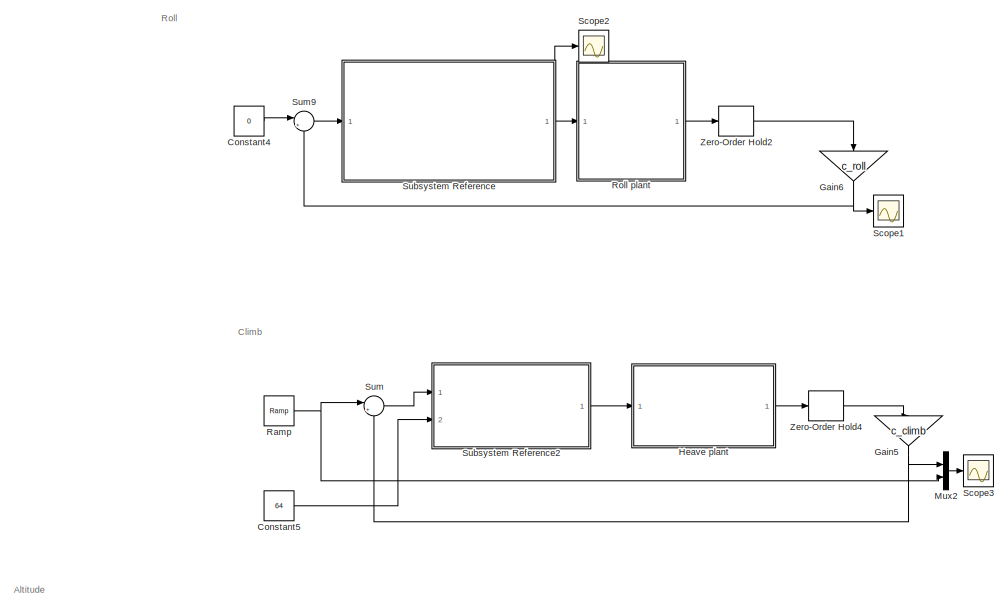
[diagram: root canvas - part 1/4, top center region]
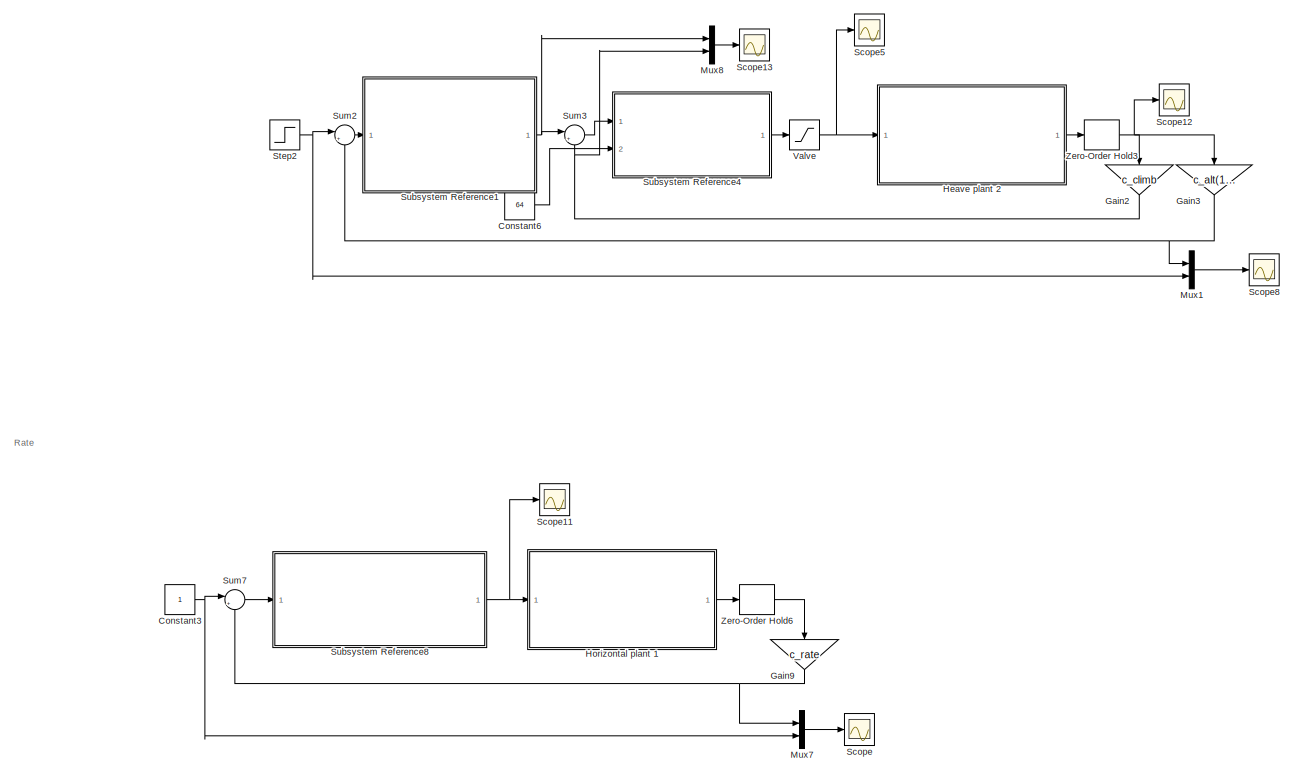
[diagram: root canvas - part 2/4, full width, middle band]
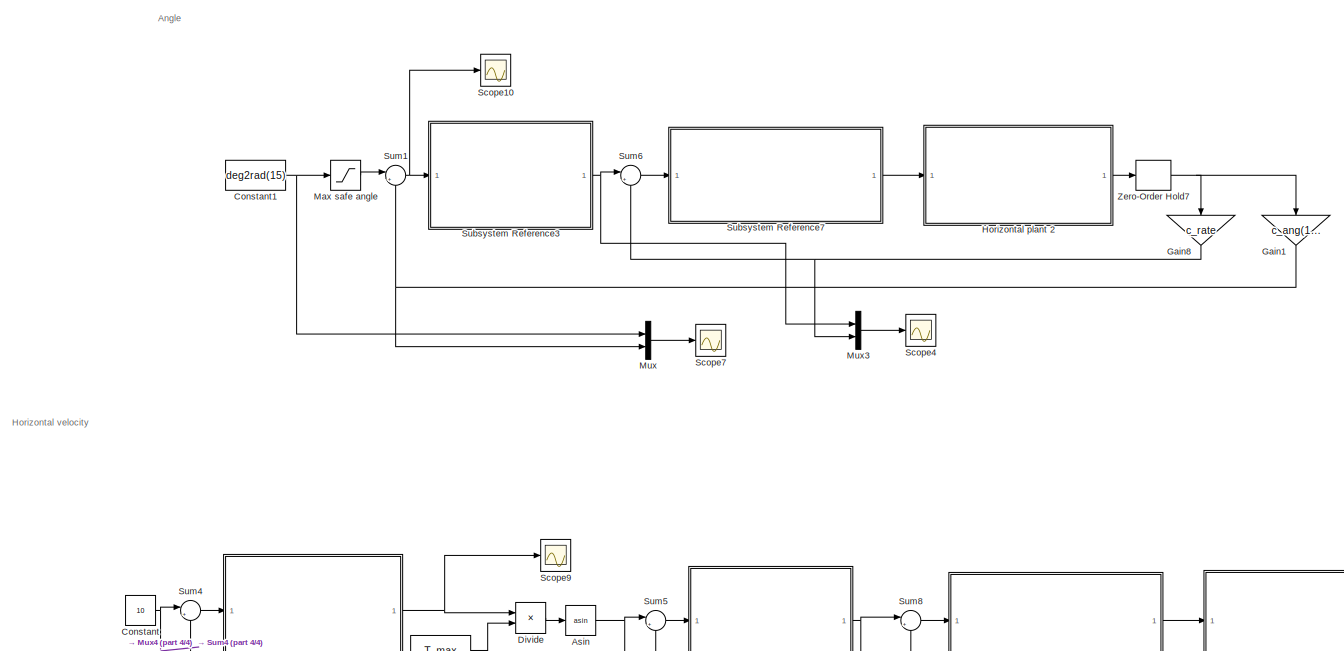
[diagram: root canvas - part 3/4, full width, bottom band]
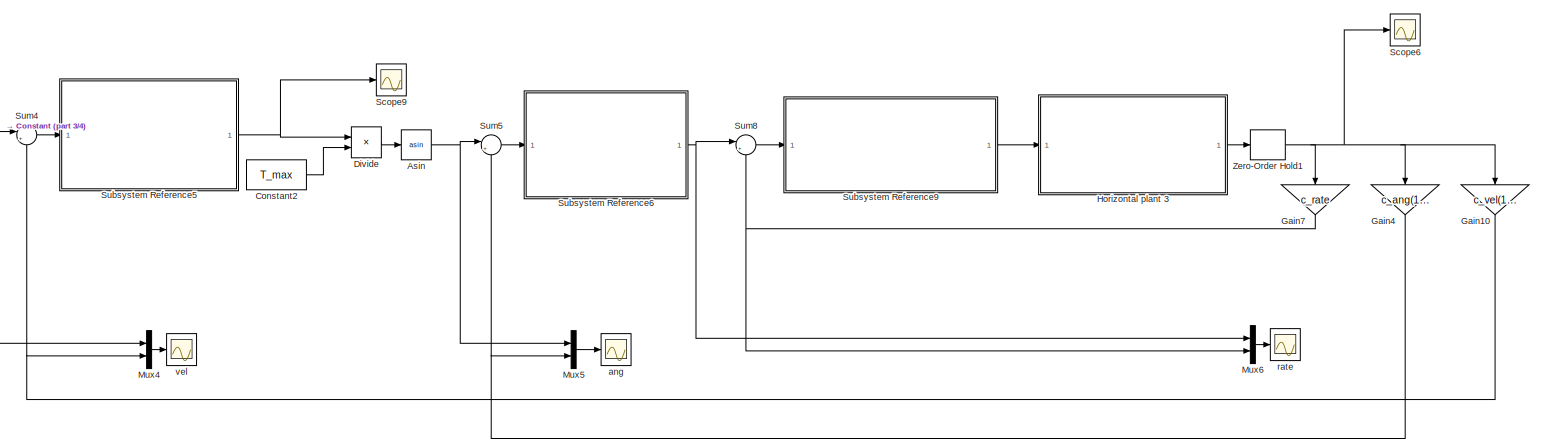
[diagram: root canvas - part 4/4, full width, bottom band]
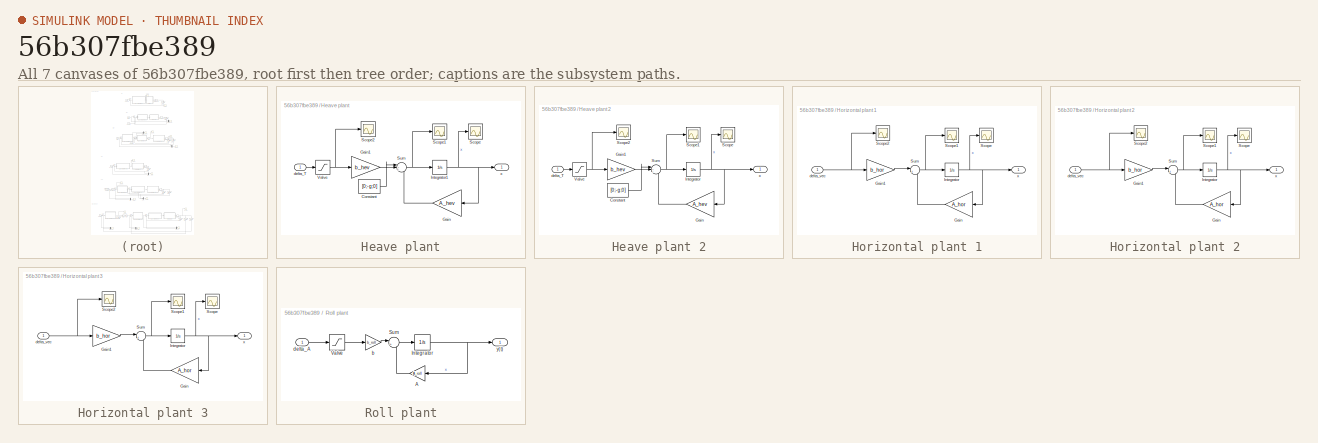
[diagram: thumbnail index - all 7 canvases of the model, root first then tree order]
MODEL slx_56b307fbe389
KIND model
CONFIG AbsTol = auto
CONFIG EnableMultiTasking = off
CONFIG FixedStep = auto
CONFIG MaxStep = auto
CONFIG MinStep = auto
CONFIG RelTol = 1e-4
CONFIG SampleTimeConstraint = Unconstrained
CONFIG SolverName = VariableStepAuto
CONFIG StartTime = 0.0
CONFIG StopTime = 20
BLOCK [Trigonometry] Asin
  Commented = on
  Operator = asin
  Ports = [1, 1]
BLOCK [Constant] Constant
  Commented = on
  Value = 10
BLOCK [Constant] Constant1
  Value = deg2rad(15)
BLOCK [Constant] Constant2
  Commented = on
  Value = T_max
BLOCK [Constant] Constant3
BLOCK [Constant] Constant4
  Commented = on
  Value = 0
BLOCK [Constant] Constant5
  Commented = on
  Value = 64
BLOCK [Constant] Constant6
  Commented = on
  Value = 64
BLOCK [Product] Divide
  Commented = on
  Inputs = */
  Ports = [2, 1]
BLOCK [Gain] Gain1
  Gain = c_ang(1:5)
  Multiplication = Matrix(K*u)
  NameLocation = left
BLOCK [Gain] Gain10
  Commented = on
  Gain = c_vel(1:5)
  Multiplication = Matrix(K*u)
  NameLocation = left
BLOCK [Gain] Gain2
  Commented = on
  Gain = c_climb
  Multiplication = Matrix(K*u)
  NameLocation = left
BLOCK [Gain] Gain3
  Commented = on
  Gain = c_alt(1:3)
  Multiplication = Matrix(K*u)
  NameLocation = left
BLOCK [Gain] Gain4
  Commented = on
  Gain = c_ang(1:5)
  Multiplication = Matrix(K*u)
  NameLocation = left
BLOCK [Gain] Gain5
  Commented = on
  Gain = c_climb
  Multiplication = Matrix(K*u)
  NameLocation = left
BLOCK [Gain] Gain6
  Commented = on
  Gain = c_roll
  Multiplication = Matrix(K*u)
  NameLocation = left
BLOCK [Gain] Gain7
  Commented = on
  Gain = c_rate
  Multiplication = Matrix(K*u)
  NameLocation = left
BLOCK [Gain] Gain8
  Gain = c_rate
  Multiplication = Matrix(K*u)
  NameLocation = left
BLOCK [Gain] Gain9
  Gain = c_rate
  Multiplication = Matrix(K*u)
  NameLocation = left
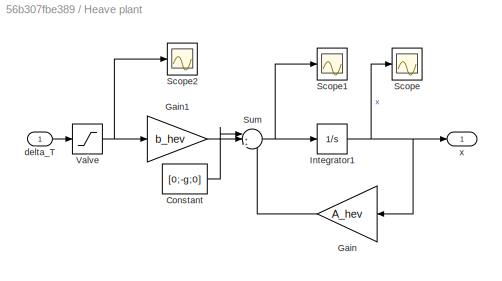
BLOCK [SubSystem] Heave plant
  Commented = on
  Ports = [1, 1]
  RequestExecContextInheritance = off
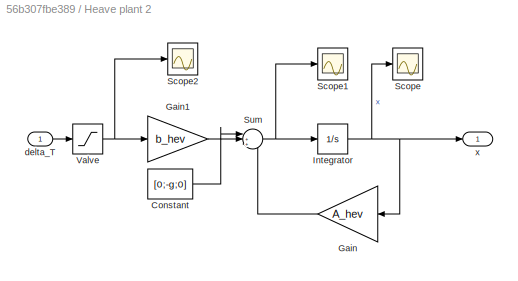
BLOCK [SubSystem] Heave plant 2
  Commented = on
  Ports = [1, 1]
  RequestExecContextInheritance = off
BLOCK [Constant] Heave plant 2/Constant
  Value = [0;-g;0]
BLOCK [Gain] Heave plant 2/Gain
  Gain = A_hev
  Multiplication = Matrix(K*u)
  NameLocation = top
BLOCK [Gain] Heave plant 2/Gain1
  Gain = b_hev
  Multiplication = Matrix(K*u)
BLOCK [Integrator] Heave plant 2/Integrator
  InitialCondition = [0;10;0]
  LimitOutput = on
  LowerSaturationLimit = [0,-inf,0]
  Ports = [1, 1]
  UpperSaturationLimit = [T_max,inf,inf]
BLOCK [Scope] Heave plant 2/Scope
  Floating = off
  NumInputPorts = 1
  Ports = [1]
  ScopeSpecificationString = Simulink.scopes.TimeScopeBlockCfg('CurrentConfiguration', extmgr.ConfigurationSet(extmgr.Configuration('Core','General UI',true),extmgr.Configuration('Core','Source UI',true),extmgr.Configuration('Sources','WiredSimulink',true,'DataLoggingVariableName','ScopeData7'),extmgr.Configuration('Visuals','Time Domain',true,'SerializedDisplays',{struct('MinYLimReal','-4.99534','MaxYLimReal','10.76436','YLa...<+1450ch>
BLOCK [Scope] Heave plant 2/Scope1
  Floating = off
  NumInputPorts = 1
  Ports = [1]
  ScopeSpecificationString = Simulink.scopes.TimeScopeBlockCfg('CurrentConfiguration', extmgr.ConfigurationSet(extmgr.Configuration('Core','General UI',true),extmgr.Configuration('Core','Source UI',true),extmgr.Configuration('Sources','WiredSimulink',true,'DataLoggingVariableName','ScopeData6'),extmgr.Configuration('Visuals','Time Domain',true,'SerializedDisplays',{struct('MinYLimReal','-1725.34577','MaxYLimReal','4636.14953'...<+1511ch>  <repeated x4 — deduplicated; at blocks: Scope1>
BLOCK [Scope] Heave plant 2/Scope2
  Floating = off
  NumInputPorts = 1
  Ports = [1]
  ScopeSpecificationString = Simulink.scopes.TimeScopeBlockCfg('CurrentConfiguration', extmgr.ConfigurationSet(extmgr.Configuration('Core','General UI',true),extmgr.Configuration('Core','Source UI',true),extmgr.Configuration('Sources','WiredSimulink',true,'DataLoggingVariableName','ScopeData2'),extmgr.Configuration('Visuals','Time Domain',true,'SerializedDisplays',{struct('MinYLimReal','-125.00000','MaxYLimReal','1125.00000',...<+1491ch>
BLOCK [Sum] Heave plant 2/Sum
  Inputs = |+++
  Ports = [3, 1]
BLOCK [Saturate] Heave plant 2/Valve
  LowerLimit = 0
  UpperLimit = T_max
BLOCK [Inport] Heave plant 2/delta_T
BLOCK [Outport] Heave plant 2/x
BLOCK [Constant] Heave plant/Constant
  Value = [0;-g;0]
BLOCK [Gain] Heave plant/Gain
  Gain = A_hev
  Multiplication = Matrix(K*u)
  NameLocation = top
BLOCK [Gain] Heave plant/Gain1
  Gain = b_hev
  Multiplication = Matrix(K*u)
BLOCK [Integrator] Heave plant/Integrator1
  InitialCondition = [0;0;0]
  LimitOutput = on
  LowerSaturationLimit = [0,-inf,-inf]
  Ports = [1, 1]
  UpperSaturationLimit = [T_max,inf,0]
BLOCK [Scope] Heave plant/Scope
  Floating = off
  NumInputPorts = 1
  Ports = [1]
  ScopeSpecificationString = Simulink.scopes.TimeScopeBlockCfg('CurrentConfiguration', extmgr.ConfigurationSet(extmgr.Configuration('Core','General UI',true),extmgr.Configuration('Core','Source UI',true),extmgr.Configuration('Sources','WiredSimulink',true,'DataLoggingVariableName','ScopeData7'),extmgr.Configuration('Visuals','Time Domain',true,'SerializedDisplays',{struct('MinYLimReal','-409.24707','MaxYLimReal','1156.58301',...<+1449ch>
BLOCK [Scope] Heave plant/Scope1
  Floating = off
  NumInputPorts = 1
  Ports = [1]
  ScopeSpecificationString = Simulink.scopes.TimeScopeBlockCfg('CurrentConfiguration', extmgr.ConfigurationSet(extmgr.Configuration('Core','General UI',true),extmgr.Configuration('Core','Source UI',true),extmgr.Configuration('Sources','WiredSimulink',true,'DataLoggingVariableName','ScopeData6'),extmgr.Configuration('Visuals','Time Domain',true,'SerializedDisplays',{struct('MinYLimReal','-561.02422','MaxYLimReal','4506.78047',...<+1515ch>
BLOCK [Scope] Heave plant/Scope2
  Floating = off
  NumInputPorts = 1
  Ports = [1]
  ScopeSpecificationString = Simulink.scopes.TimeScopeBlockCfg('CurrentConfiguration', extmgr.ConfigurationSet(extmgr.Configuration('Core','General UI',true),extmgr.Configuration('Core','Source UI',true),extmgr.Configuration('Sources','WiredSimulink',true,'DataLoggingVariableName','ScopeData2'),extmgr.Configuration('Visuals','Time Domain',true,'SerializedDisplays',{struct('MinYLimReal','-125.00000','MaxYLimReal','1125.00000',...<+1412ch>
BLOCK [Sum] Heave plant/Sum
  Inputs = |+++
  Ports = [3, 1]
BLOCK [Saturate] Heave plant/Valve
  LowerLimit = 0
  UpperLimit = T_max
BLOCK [Inport] Heave plant/delta_T
BLOCK [Outport] Heave plant/x
BLOCK [SubSystem] Horizontal plant 1
  Ports = [1, 1]
  RequestExecContextInheritance = off
BLOCK [Gain] Horizontal plant 1/Gain
  Gain = A_hor
  Multiplication = Matrix(K*u)
  NameLocation = top
BLOCK [Gain] Horizontal plant 1/Gain1
  Gain = b_hor
  Multiplication = Matrix(K*u)
BLOCK [Integrator] Horizontal plant 1/Integrator
  InitialCondition = [0;0;0;0;0]
  LimitOutput = on
  LowerSaturationLimit = [-Vec_max,-inf,-inf,-inf,-inf]
  Ports = [1, 1]
  UpperSaturationLimit = [Vec_max,inf,inf,inf,inf]
BLOCK [Scope] Horizontal plant 1/Scope
  Floating = off
  NumInputPorts = 1
  Ports = [1]
  ScopeSpecificationString = Simulink.scopes.TimeScopeBlockCfg('CurrentConfiguration', extmgr.ConfigurationSet(extmgr.Configuration('Core','General UI',true),extmgr.Configuration('Core','Source UI',true),extmgr.Configuration('Sources','WiredSimulink',true,'DataLoggingVariableName','ScopeData7'),extmgr.Configuration('Visuals','Time Domain',true,'SerializedDisplays',{struct('MinYLimReal','-168.25795','MaxYLimReal','11.30293','Y...<+1438ch>  <repeated x3 — deduplicated; at blocks: Scope>
BLOCK [Scope] Horizontal plant 1/Scope1
  Floating = off
  NumInputPorts = 1
  Ports = [1]
BLOCK [Scope] Horizontal plant 1/Scope2
  Floating = off
  NumInputPorts = 1
  Ports = [1]
  ScopeSpecificationString = Simulink.scopes.TimeScopeBlockCfg('CurrentConfiguration', extmgr.ConfigurationSet(extmgr.Configuration('Core','General UI',true),extmgr.Configuration('Core','Source UI',true),extmgr.Configuration('Sources','WiredSimulink',true,'DataLoggingVariableName','ScopeData2'),extmgr.Configuration('Visuals','Time Domain',true,'SerializedDisplays',{struct('MinYLimReal','77.03779','MaxYLimReal','88.7685','YLab...<+1478ch>
BLOCK [Sum] Horizontal plant 1/Sum
  Inputs = |++
  Ports = [2, 1]
BLOCK [Inport] Horizontal plant 1/delta_vec
BLOCK [Outport] Horizontal plant 1/x
BLOCK [SubSystem] Horizontal plant 2
  Ports = [1, 1]
  RequestExecContextInheritance = off
BLOCK [Gain] Horizontal plant 2/Gain
  Gain = A_hor
  Multiplication = Matrix(K*u)
  NameLocation = top
BLOCK [Gain] Horizontal plant 2/Gain1
  Gain = b_hor
  Multiplication = Matrix(K*u)
BLOCK [Integrator] Horizontal plant 2/Integrator
  InitialCondition = [0;0;0;0;0]
  LimitOutput = on
  LowerSaturationLimit = [-Vec_max,-inf,-inf,-inf,-inf]
  Ports = [1, 1]
  UpperSaturationLimit = [Vec_max,inf,inf,inf,inf]
BLOCK [Scope] Horizontal plant 2/Scope
  Floating = off
  NumInputPorts = 1
  Ports = [1]
BLOCK [Scope] Horizontal plant 2/Scope1
  Floating = off
  NumInputPorts = 1
  Ports = [1]
BLOCK [Scope] Horizontal plant 2/Scope2
  Floating = off
  NumInputPorts = 1
  Ports = [1]
  ScopeSpecificationString = Simulink.scopes.TimeScopeBlockCfg('CurrentConfiguration', extmgr.ConfigurationSet(extmgr.Configuration('Core','General UI',true),extmgr.Configuration('Core','Source UI',true),extmgr.Configuration('Sources','WiredSimulink',true,'DataLoggingVariableName','ScopeData2'),extmgr.Configuration('Visuals','Time Domain',true,'SerializedDisplays',{struct('MinYLimReal','-12.28837','MaxYLimReal','9.17273','YLa...<+1480ch>
BLOCK [Sum] Horizontal plant 2/Sum
  Inputs = |++
  Ports = [2, 1]
BLOCK [Inport] Horizontal plant 2/delta_vec
BLOCK [Outport] Horizontal plant 2/x
BLOCK [SubSystem] Horizontal plant 3
  Commented = on
  Ports = [1, 1]
  RequestExecContextInheritance = off
BLOCK [Gain] Horizontal plant 3/Gain
  Gain = A_hor
  Multiplication = Matrix(K*u)
  NameLocation = top
BLOCK [Gain] Horizontal plant 3/Gain1
  Gain = b_hor
  Multiplication = Matrix(K*u)
BLOCK [Integrator] Horizontal plant 3/Integrator
  InitialCondition = [0;0;0;0;0]
  LimitOutput = on
  LowerSaturationLimit = [-Vec_max,-inf,-inf,-inf,-inf]
  Ports = [1, 1]
  UpperSaturationLimit = [Vec_max,inf,inf,inf,inf]
BLOCK [Scope] Horizontal plant 3/Scope
  Floating = off
  NumInputPorts = 1
  Ports = [1]
BLOCK [Scope] Horizontal plant 3/Scope1
  Floating = off
  NumInputPorts = 1
  Ports = [1]
BLOCK [Scope] Horizontal plant 3/Scope2
  Floating = off
  NumInputPorts = 1
  Ports = [1]
  ScopeSpecificationString = Simulink.scopes.TimeScopeBlockCfg('CurrentConfiguration', extmgr.ConfigurationSet(extmgr.Configuration('Core','General UI',true),extmgr.Configuration('Core','Source UI',true),extmgr.Configuration('Sources','WiredSimulink',true,'DataLoggingVariableName','ScopeData2'),extmgr.Configuration('Visuals','Time Domain',true,'SerializedDisplays',{struct('MinYLimReal','-12.28837','MaxYLimReal','9.17273','YLa...<+1480ch>
BLOCK [Sum] Horizontal plant 3/Sum
  Inputs = |++
  Ports = [2, 1]
BLOCK [Inport] Horizontal plant 3/delta_vec
BLOCK [Outport] Horizontal plant 3/x
BLOCK [Saturate] Max safe angle
  LowerLimit = -ang_safe
  UpperLimit = ang_safe
BLOCK [Mux] Mux
  DisplayOption = bar
  Inputs = 2
  Ports = [2, 1]
BLOCK [Mux] Mux1
  Commented = on
  DisplayOption = bar
  Inputs = 2
  Ports = [2, 1]
BLOCK [Mux] Mux2
  Commented = on
  DisplayOption = bar
  Inputs = 2
  Ports = [2, 1]
BLOCK [Mux] Mux3
  DisplayOption = bar
  Inputs = 2
  Ports = [2, 1]
BLOCK [Mux] Mux4
  Commented = on
  DisplayOption = bar
  Inputs = 2
  Ports = [2, 1]
BLOCK [Mux] Mux5
  Commented = on
  DisplayOption = bar
  Inputs = 2
  Ports = [2, 1]
BLOCK [Mux] Mux6
  Commented = on
  DisplayOption = bar
  Inputs = 2
  Ports = [2, 1]
BLOCK [Mux] Mux7
  DisplayOption = bar
  Inputs = 2
  Ports = [2, 1]
BLOCK [Mux] Mux8
  Commented = on
  DisplayOption = bar
  Inputs = 2
  Ports = [2, 1]
BLOCK [Reference] Ramp  REF=simulink/Sources/Ramp
  Commented = on
  Ports = [0, 1]
  SourceBlock = simulink/Sources/Ramp
  SourceProductBaseCode = SL
  SourceType = Ramp
BLOCK [SubSystem] Roll plant
  Commented = on
  Ports = [1, 1]
  RequestExecContextInheritance = off
BLOCK [Gain] Roll plant/A
  Gain = A_roll
  Multiplication = Matrix(K*u)
BLOCK [Integrator] Roll plant/Integrator
  InitialCondition = [0;-1]
  LimitOutput = on
  LowerSaturationLimit = [-1,-inf]
  Ports = [1, 1]
  UpperSaturationLimit = [1,inf]
BLOCK [Sum] Roll plant/Sum
  Inputs = |++
  Ports = [2, 1]
BLOCK [Saturate] Roll plant/Valve 
  LowerLimit = -T_max
  UpperLimit = T_max_s
BLOCK [Gain] Roll plant/b
  Gain = b_roll
  Multiplication = Matrix(K*u)
BLOCK [Inport] Roll plant/delta_A
BLOCK [Outport] Roll plant/y(t)
BLOCK [Scope] Scope
  Floating = off
  NumInputPorts = 1
  Ports = [1]
  ScopeSpecificationString = Simulink.scopes.TimeScopeBlockCfg('CurrentConfiguration', extmgr.ConfigurationSet(extmgr.Configuration('Core','General UI',true),extmgr.Configuration('Core','Source UI',true),extmgr.Configuration('Sources','WiredSimulink',true,'DataLoggingVariableName','ScopeData4'),extmgr.Configuration('Visuals','Time Domain',true,'SerializedDisplays',{struct('MinYLimReal','-0.13822','MaxYLimReal','1.24395','YLab...<+1425ch>
BLOCK [Scope] Scope1
  Commented = on
  Floating = off
  NumInputPorts = 1
  Ports = [1]
  ScopeSpecificationString = Simulink.scopes.TimeScopeBlockCfg('CurrentConfiguration', extmgr.ConfigurationSet(extmgr.Configuration('Core','General UI',true),extmgr.Configuration('Core','Source UI',true),extmgr.Configuration('Sources','WiredSimulink',true,'DataLoggingVariableName','ScopeData1'),extmgr.Configuration('Visuals','Time Domain',true,'SerializedDisplays',{struct('MinYLimReal','-1.1883','MaxYLimReal','0.69468','YLabe...<+1477ch>
BLOCK [Scope] Scope10
  Floating = off
  NumInputPorts = 1
  Ports = [1]
  ScopeSpecificationString = Simulink.scopes.TimeScopeBlockCfg('CurrentConfiguration', extmgr.ConfigurationSet(extmgr.Configuration('Core','General UI',true),extmgr.Configuration('Core','Source UI',true),extmgr.Configuration('Sources','WiredSimulink',true,'DataLoggingVariableName','ScopeData4'),extmgr.Configuration('Visuals','Time Domain',true,'SerializedDisplays',{struct('MinYLimReal','-0.03604','MaxYLimReal','0.29489','YLab...<+1393ch>
BLOCK [Scope] Scope11
  Floating = off
  NumInputPorts = 1
  Ports = [1]
  ScopeSpecificationString = Simulink.scopes.TimeScopeBlockCfg('CurrentConfiguration', extmgr.ConfigurationSet(extmgr.Configuration('Core','General UI',true),extmgr.Configuration('Core','Source UI',true),extmgr.Configuration('Sources','WiredSimulink',true,'DataLoggingVariableName','ScopeData6'),extmgr.Configuration('Visuals','Time Domain',true,'SerializedDisplays',{struct('MinYLimReal','-12.11209','MaxYLimReal','88.89831','YL...<+1395ch>
BLOCK [Scope] Scope12
  Commented = on
  Floating = off
  NumInputPorts = 1
  Ports = [1]
  ScopeSpecificationString = Simulink.scopes.TimeScopeBlockCfg('CurrentConfiguration', extmgr.ConfigurationSet(extmgr.Configuration('Core','General UI',true),extmgr.Configuration('Core','Source UI',true),extmgr.Configuration('Sources','WiredSimulink',true,'DataLoggingVariableName','ScopeData8'),extmgr.Configuration('Visuals','Time Domain',true,'SerializedDisplays',{struct('MinYLimReal','-135.45755','MaxYLimReal','1105.1456','...<+1893ch>
BLOCK [Scope] Scope13
  Commented = on
  Floating = off
  NumInputPorts = 1
  Ports = [1]
  ScopeSpecificationString = Simulink.scopes.TimeScopeBlockCfg('CurrentConfiguration', extmgr.ConfigurationSet(extmgr.Configuration('Core','General UI',true),extmgr.Configuration('Core','Source UI',true),extmgr.Configuration('Sources','WiredSimulink',true,'DataLoggingVariableName','ScopeData7'),extmgr.Configuration('Visuals','Time Domain',true,'SerializedDisplays',{struct('MinYLimReal','-2.6424','MaxYLimReal','13.62693','YLab...<+1462ch>
BLOCK [Scope] Scope2
  Commented = on
  Floating = off
  NumInputPorts = 1
  Ports = [1]
  ScopeSpecificationString = Simulink.scopes.TimeScopeBlockCfg('CurrentConfiguration', extmgr.ConfigurationSet(extmgr.Configuration('Core','General UI',true),extmgr.Configuration('Core','Source UI',true),extmgr.Configuration('Sources','WiredSimulink',true,'DataLoggingVariableName','ScopeData2'),extmgr.Configuration('Visuals','Time Domain',true,'SerializedDisplays',{struct('MinYLimReal','-0.18817','MaxYLimReal','1.13202','YLab...<+1452ch>
BLOCK [Scope] Scope3
  Commented = on
  Floating = off
  NumInputPorts = 1
  Ports = [1]
  ScopeSpecificationString = Simulink.scopes.TimeScopeBlockCfg('CurrentConfiguration', extmgr.ConfigurationSet(extmgr.Configuration('Core','General UI',true),extmgr.Configuration('Core','Source UI',true),extmgr.Configuration('Sources','WiredSimulink',true,'DataLoggingVariableName','ScopeData5'),extmgr.Configuration('Visuals','Time Domain',true,'SerializedDisplays',{struct('MinYLimReal','-7.99183','MaxYLimReal','56.44354','YLa...<+1446ch>
BLOCK [Scope] Scope4
  Floating = off
  NumInputPorts = 1
  Ports = [1]
  ScopeSpecificationString = Simulink.scopes.TimeScopeBlockCfg('CurrentConfiguration', extmgr.ConfigurationSet(extmgr.Configuration('Core','General UI',true),extmgr.Configuration('Core','Source UI',true),extmgr.Configuration('Sources','WiredSimulink',true,'DataLoggingVariableName','ScopeData1'),extmgr.Configuration('Visuals','Time Domain',true,'SerializedDisplays',{struct('MinYLimReal','-0.06545','MaxYLimReal','0.58905','YLab...<+1461ch>
BLOCK [Scope] Scope5
  Commented = on
  Floating = off
  NumInputPorts = 1
  Ports = [1]
  ScopeSpecificationString = Simulink.scopes.TimeScopeBlockCfg('CurrentConfiguration', extmgr.ConfigurationSet(extmgr.Configuration('Core','General UI',true),extmgr.Configuration('Core','Source UI',true),extmgr.Configuration('Sources','WiredSimulink',true,'DataLoggingVariableName','ScopeData3'),extmgr.Configuration('Visuals','Time Domain',true,'SerializedDisplays',{struct('MinYLimReal','-125.00000','MaxYLimReal','1125.00000',...<+1430ch>
BLOCK [Scope] Scope6
  Commented = on
  Floating = off
  NumInputPorts = 1
  Ports = [1]
  ScopeSpecificationString = Simulink.scopes.TimeScopeBlockCfg('CurrentConfiguration', extmgr.ConfigurationSet(extmgr.Configuration('Core','General UI',true),extmgr.Configuration('Core','Source UI',true),extmgr.Configuration('Sources','WiredSimulink',true,'DataLoggingVariableName','ScopeData4'),extmgr.Configuration('Visuals','Time Domain',true,'SerializedDisplays',{struct('MinYLimReal','-8.22685','MaxYLimReal','15.62769','YLa...<+1513ch>
BLOCK [Scope] Scope7
  Floating = off
  NumInputPorts = 1
  Ports = [1]
  ScopeSpecificationString = Simulink.scopes.TimeScopeBlockCfg('CurrentConfiguration', extmgr.ConfigurationSet(extmgr.Configuration('Core','General UI',true),extmgr.Configuration('Core','Source UI',true),extmgr.Configuration('Sources','WiredSimulink',true,'DataLoggingVariableName','ScopeData3'),extmgr.Configuration('Visuals','Time Domain',true,'SerializedDisplays',{struct('MinYLimReal','-0.03482','MaxYLimReal','0.3134','YLabe...<+1446ch>
BLOCK [Scope] Scope8
  Commented = on
  Floating = off
  NumInputPorts = 1
  Ports = [1]
  ScopeSpecificationString = Simulink.scopes.TimeScopeBlockCfg('CurrentConfiguration', extmgr.ConfigurationSet(extmgr.Configuration('Core','General UI',true),extmgr.Configuration('Core','Source UI',true),extmgr.Configuration('Sources','WiredSimulink',true,'DataLoggingVariableName','ScopeData10'),extmgr.Configuration('Visuals','Time Domain',true,'SerializedDisplays',{struct('MinYLimReal','-1.875','MaxYLimReal','16.875','YLabel...<+1439ch>
BLOCK [Scope] Scope9
  Commented = on
  Floating = off
  NumInputPorts = 1
  Ports = [1]
  ScopeSpecificationString = Simulink.scopes.TimeScopeBlockCfg('CurrentConfiguration', extmgr.ConfigurationSet(extmgr.Configuration('Core','General UI',true),extmgr.Configuration('Core','Source UI',true),extmgr.Configuration('Sources','WiredSimulink',true,'DataLoggingVariableName','ScopeData5'),extmgr.Configuration('Visuals','Time Domain',true,'SerializedDisplays',{struct('MinYLimReal','-94.94268','MaxYLimReal','566.10474','Y...<+1419ch>
BLOCK [Step] Step2
  After = 0
  Before = 15
  Commented = on
  SampleTime = 0
  Time = 100
BLOCK [SubSystem] Subsystem Reference
  Commented = on
  Ports = [1, 1]
  ReferencedSubsystem = roll_controller
  RequestExecContextInheritance = off
BLOCK [SubSystem] Subsystem Reference1
  Commented = on
  Ports = [1, 1]
  ReferencedSubsystem = alt_control
  RequestExecContextInheritance = off
BLOCK [SubSystem] Subsystem Reference2
  Commented = on
  Ports = [2, 1]
  ReferencedSubsystem = climb_control_PI
  RequestExecContextInheritance = off
BLOCK [SubSystem] Subsystem Reference3
  Ports = [1, 1]
  ReferencedSubsystem = ang_control
  RequestExecContextInheritance = off
BLOCK [SubSystem] Subsystem Reference4
  Commented = on
  Ports = [2, 1]
  ReferencedSubsystem = climb_control_PI
  RequestExecContextInheritance = off
BLOCK [SubSystem] Subsystem Reference5
  Commented = on
  Ports = [1, 1]
  ReferencedSubsystem = hor_vel_control
  RequestExecContextInheritance = off
BLOCK [SubSystem] Subsystem Reference6
  Commented = on
  Ports = [1, 1]
  ReferencedSubsystem = ang_control
  RequestExecContextInheritance = off
BLOCK [SubSystem] Subsystem Reference7
  Ports = [1, 1]
  ReferencedSubsystem = rate_controller
  RequestExecContextInheritance = off
BLOCK [SubSystem] Subsystem Reference8
  Ports = [1, 1]
  ReferencedSubsystem = rate_controller
  RequestExecContextInheritance = off
BLOCK [SubSystem] Subsystem Reference9
  Commented = on
  Ports = [1, 1]
  ReferencedSubsystem = rate_controller
  RequestExecContextInheritance = off
BLOCK [Sum] Sum
  Commented = on
  Inputs = |+-
  Ports = [2, 1]
BLOCK [Sum] Sum1
  Inputs = |+-
  Ports = [2, 1]
BLOCK [Sum] Sum2
  Commented = on
  Inputs = |+-
  Ports = [2, 1]
BLOCK [Sum] Sum3
  Commented = on
  Inputs = |+-
  Ports = [2, 1]
BLOCK [Sum] Sum4
  Commented = on
  Inputs = |+-
  Ports = [2, 1]
BLOCK [Sum] Sum5
  Commented = on
  Inputs = |+-
  Ports = [2, 1]
BLOCK [Sum] Sum6
  Inputs = |+-
  Ports = [2, 1]
BLOCK [Sum] Sum7
  Inputs = |+-
  Ports = [2, 1]
BLOCK [Sum] Sum8
  Commented = on
  Inputs = |+-
  Ports = [2, 1]
BLOCK [Sum] Sum9
  Commented = on
  Inputs = |+-
  Ports = [2, 1]
BLOCK [Saturate] Valve
  Commented = on
  LowerLimit = 0
  UpperLimit = T_max
BLOCK [ZeroOrderHold] Zero-Order Hold1
  Commented = on
  SampleTime = Ts_hor
BLOCK [ZeroOrderHold] Zero-Order Hold2
  Commented = on
  SampleTime = Ts_roll
BLOCK [ZeroOrderHold] Zero-Order Hold3
  Commented = on
  SampleTime = Ts_hev
BLOCK [ZeroOrderHold] Zero-Order Hold4
  Commented = on
  SampleTime = Ts_hev
BLOCK [ZeroOrderHold] Zero-Order Hold6
  SampleTime = Ts_hor
BLOCK [ZeroOrderHold] Zero-Order Hold7
  SampleTime = Ts_hor
BLOCK [Scope] ang
  Commented = on
  Floating = off
  NumInputPorts = 1
  Ports = [1]
  ScopeSpecificationString = Simulink.scopes.TimeScopeBlockCfg('CurrentConfiguration', extmgr.ConfigurationSet(extmgr.Configuration('Core','General UI',true),extmgr.Configuration('Core','Source UI',true),extmgr.Configuration('Sources','WiredSimulink',true,'DataLoggingVariableName','ScopeData1'),extmgr.Configuration('Visuals','Time Domain',true,'SerializedDisplays',{struct('MinYLimReal','-1.9635','MaxYLimReal','1.9635','YLabel...<+1414ch>
BLOCK [Scope] rate
  Commented = on
  Floating = off
  NumInputPorts = 1
  Ports = [1]
  ScopeSpecificationString = Simulink.scopes.TimeScopeBlockCfg('CurrentConfiguration', extmgr.ConfigurationSet(extmgr.Configuration('Core','General UI',true),extmgr.Configuration('Core','Source UI',true),extmgr.Configuration('Sources','WiredSimulink',true,'DataLoggingVariableName','ScopeData3'),extmgr.Configuration('Visuals','Time Domain',true,'SerializedDisplays',{struct('MinYLimReal','-0.58748','MaxYLimReal','0.85222','YLab...<+1417ch>
BLOCK [Scope] vel
  Commented = on
  Floating = off
  NumInputPorts = 1
  Ports = [1]
  ScopeSpecificationString = Simulink.scopes.TimeScopeBlockCfg('CurrentConfiguration', extmgr.ConfigurationSet(extmgr.Configuration('Core','General UI',true),extmgr.Configuration('Core','Source UI',true),extmgr.Configuration('Sources','WiredSimulink',true,'DataLoggingVariableName','ScopeData2'),extmgr.Configuration('Visuals','Time Domain',true,'SerializedDisplays',{struct('MinYLimReal','-1.32209','MaxYLimReal','11.89885','YLa...<+1409ch>
ANNOTATION (root): Altitude
ANNOTATION (root): Angle
ANNOTATION (root): Climb
ANNOTATION (root): Horizontal velocity
ANNOTATION (root): Rate
ANNOTATION (root): Roll
NET Asin:1 -> Mux5:1, Sum5:1
NET Constant1:1 -> Max safe angle:1, Mux:1
LINE Constant2:1 -> Divide:2
NET Constant3:1 -> Mux7:2, Sum7:1
LINE Constant4:1 -> Sum9:1
LINE Constant5:1 -> Subsystem Reference2:2
LINE Constant6:1 -> Subsystem Reference4:2
NET Constant:1 -> Mux4:1, Sum4:1
LINE Divide:1 -> Asin:1
NET Gain10:1 -> Mux4:2, Sum4:2
NET Gain1:1 -> Mux:2, Sum1:2
NET Gain2:1 -> Mux8:2, Sum3:2
NET Gain3:1 -> Mux1:1, Sum2:2
NET Gain4:1 -> Mux5:2, Sum5:2
NET Gain5:1 -> Mux2:1, Sum:2
NET Gain6:1 -> Scope1:1, Sum9:2
NET Gain7:1 -> Mux6:2, Sum8:2
NET Gain8:1 -> Mux3:2, Sum6:2
NET Gain9:1 -> Mux7:1, Sum7:2
LINE Heave plant 2/Constant:1 -> Heave plant 2/Sum:2
LINE Heave plant 2/Gain1:1 -> Heave plant 2/Sum:1
LINE Heave plant 2/Gain:1 -> Heave plant 2/Sum:3
NET Heave plant 2/Integrator:1 -> Heave plant 2/Gain:1, Heave plant 2/Scope:1, Heave plant 2/x:1
NET Heave plant 2/Sum:1 -> Heave plant 2/Integrator:1, Heave plant 2/Scope1:1
NET Heave plant 2/Valve:1 -> Heave plant 2/Gain1:1, Heave plant 2/Scope2:1
LINE Heave plant 2/delta_T:1 -> Heave plant 2/Valve:1
LINE Heave plant 2:1 -> Zero-Order Hold3:1
LINE Heave plant/Constant:1 -> Heave plant/Sum:2
LINE Heave plant/Gain1:1 -> Heave plant/Sum:1
LINE Heave plant/Gain:1 -> Heave plant/Sum:3
NET Heave plant/Integrator1:1 -> Heave plant/Gain:1, Heave plant/Scope:1, Heave plant/x:1
NET Heave plant/Sum:1 -> Heave plant/Integrator1:1, Heave plant/Scope1:1
NET Heave plant/Valve:1 -> Heave plant/Gain1:1, Heave plant/Scope2:1
LINE Heave plant/delta_T:1 -> Heave plant/Valve:1
LINE Heave plant:1 -> Zero-Order Hold4:1
LINE Horizontal plant 1/Gain1:1 -> Horizontal plant 1/Sum:1
LINE Horizontal plant 1/Gain:1 -> Horizontal plant 1/Sum:2
NET Horizontal plant 1/Integrator:1 -> Horizontal plant 1/Gain:1, Horizontal plant 1/Scope:1, Horizontal plant 1/x:1
NET Horizontal plant 1/Sum:1 -> Horizontal plant 1/Integrator:1, Horizontal plant 1/Scope1:1
NET Horizontal plant 1/delta_vec:1 -> Horizontal plant 1/Gain1:1, Horizontal plant 1/Scope2:1
LINE Horizontal plant 1:1 -> Zero-Order Hold6:1
LINE Horizontal plant 2/Gain1:1 -> Horizontal plant 2/Sum:1
LINE Horizontal plant 2/Gain:1 -> Horizontal plant 2/Sum:2
NET Horizontal plant 2/Integrator:1 -> Horizontal plant 2/Gain:1, Horizontal plant 2/Scope:1, Horizontal plant 2/x:1
NET Horizontal plant 2/Sum:1 -> Horizontal plant 2/Integrator:1, Horizontal plant 2/Scope1:1
NET Horizontal plant 2/delta_vec:1 -> Horizontal plant 2/Gain1:1, Horizontal plant 2/Scope2:1
LINE Horizontal plant 2:1 -> Zero-Order Hold7:1
LINE Horizontal plant 3/Gain1:1 -> Horizontal plant 3/Sum:1
LINE Horizontal plant 3/Gain:1 -> Horizontal plant 3/Sum:2
NET Horizontal plant 3/Integrator:1 -> Horizontal plant 3/Gain:1, Horizontal plant 3/Scope:1, Horizontal plant 3/x:1
NET Horizontal plant 3/Sum:1 -> Horizontal plant 3/Integrator:1, Horizontal plant 3/Scope1:1
NET Horizontal plant 3/delta_vec:1 -> Horizontal plant 3/Gain1:1, Horizontal plant 3/Scope2:1
LINE Horizontal plant 3:1 -> Zero-Order Hold1:1
LINE Max safe angle:1 -> Sum1:1
LINE Mux1:1 -> Scope8:1
LINE Mux2:1 -> Scope3:1
LINE Mux3:1 -> Scope4:1
LINE Mux4:1 -> vel:1
LINE Mux5:1 -> ang:1
LINE Mux6:1 -> rate:1
LINE Mux7:1 -> Scope:1
LINE Mux8:1 -> Scope13:1
LINE Mux:1 -> Scope7:1
NET Ramp:1 -> Mux2:2, Sum:1
LINE Roll plant/A:1 -> Roll plant/Sum:2
NET Roll plant/Integrator:1 -> Roll plant/A:1, Roll plant/y(t):1
LINE Roll plant/Sum:1 -> Roll plant/Integrator:1
LINE Roll plant/Valve :1 -> Roll plant/b:1
LINE Roll plant/b:1 -> Roll plant/Sum:1
LINE Roll plant/delta_A:1 -> Roll plant/Valve :1
LINE Roll plant:1 -> Zero-Order Hold2:1
NET Step2:1 -> Mux1:2, Sum2:1
NET Subsystem Reference1:1 -> Mux8:1, Sum3:1
LINE Subsystem Reference2:1 -> Heave plant:1
NET Subsystem Reference3:1 -> Mux3:1, Sum6:1
LINE Subsystem Reference4:1 -> Valve:1
NET Subsystem Reference5:1 -> Divide:1, Scope9:1
NET Subsystem Reference6:1 -> Mux6:1, Sum8:1
LINE Subsystem Reference7:1 -> Horizontal plant 2:1
NET Subsystem Reference8:1 -> Horizontal plant 1:1, Scope11:1
LINE Subsystem Reference9:1 -> Horizontal plant 3:1
NET Subsystem Reference:1 -> Roll plant:1, Scope2:1
NET Sum1:1 -> Scope10:1, Subsystem Reference3:1
LINE Sum2:1 -> Subsystem Reference1:1
LINE Sum3:1 -> Subsystem Reference4:1
LINE Sum4:1 -> Subsystem Reference5:1
LINE Sum5:1 -> Subsystem Reference6:1
LINE Sum6:1 -> Subsystem Reference7:1
LINE Sum7:1 -> Subsystem Reference8:1
LINE Sum8:1 -> Subsystem Reference9:1
LINE Sum9:1 -> Subsystem Reference:1
LINE Sum:1 -> Subsystem Reference2:1
NET Valve:1 -> Heave plant 2:1, Scope5:1
NET Zero-Order Hold1:1 -> Gain10:1, Gain4:1, Gain7:1, Scope6:1
LINE Zero-Order Hold2:1 -> Gain6:1
NET Zero-Order Hold3:1 -> Gain2:1, Gain3:1, Scope12:1
LINE Zero-Order Hold4:1 -> Gain5:1
LINE Zero-Order Hold6:1 -> Gain9:1
NET Zero-Order Hold7:1 -> Gain1:1, Gain8:1
note: NET lines group one-source signal fan-out (src -> all destinations, sorted); 1:1 wires keep LINE
